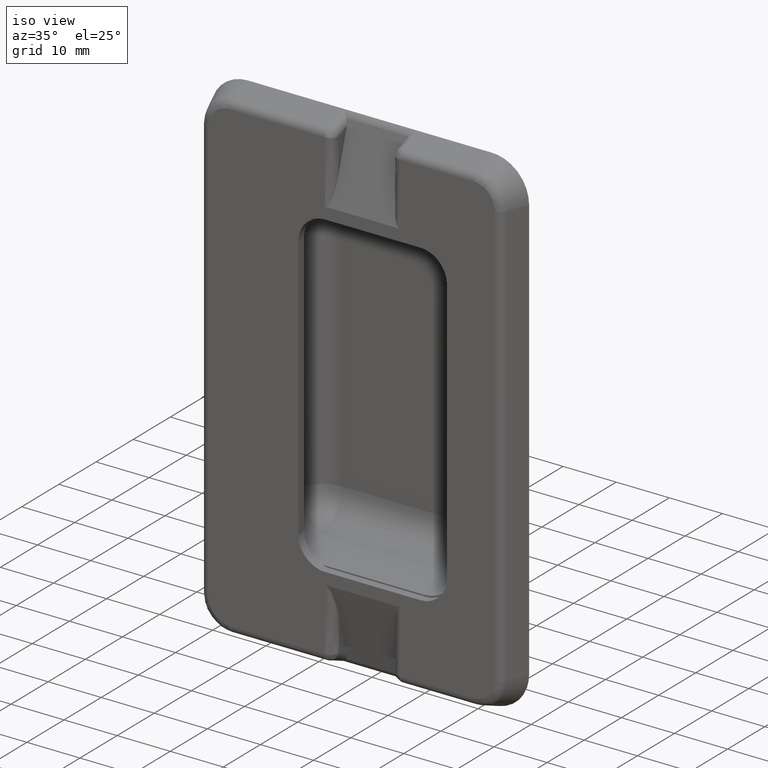
[diagram: clean part render]
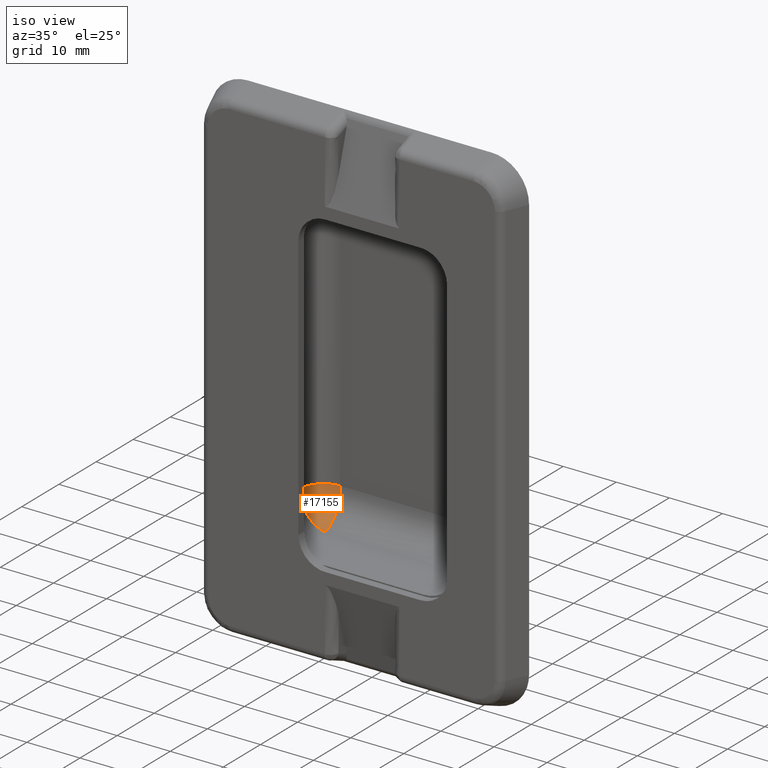
[diagram: same view with one face highlighted and labeled with its STEP entity id]
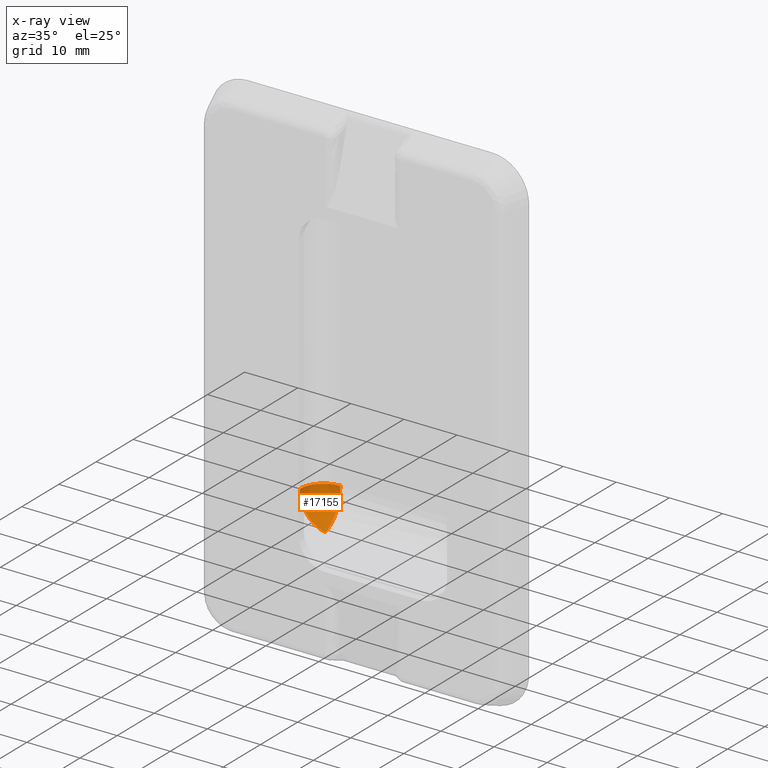
[diagram: x-ray of the same camera — body ghosted, the highlighted face saturated]
A machine part, iso view. The second image highlights one B-rep face of the part: STEP entity #17155.
The next image is the same camera in x-ray: the body ghosted, the highlighted face saturated — about 4% of this face is hidden behind the body in this view.
In plain terms, the highlighted face is a freeform B-spline surface patch.
Its self-contained STEP definition (entity closure, byte-faithful):
#17021=CARTESIAN_POINT('',(11.500000000000000,6.999999999999920,-24.250000000000000));
#17022=VERTEX_POINT('',#17021);
#17023=CARTESIAN_POINT('',(17.0,5.999999999999920,-29.750000000000000));
#17024=VERTEX_POINT('',#17023);
#17025=CARTESIAN_POINT('',(11.500000000000011,6.999999999999919,-24.250000000000000));
#17026=CARTESIAN_POINT('',(11.500000000000005,6.999999999999918,-29.750000000000000));
#17027=CARTESIAN_POINT('',(17.0,5.999999999999920,-29.750000000000000));
#17035=(BOUNDED_CURVE()B_SPLINE_CURVE(2,(#17025,#17026,#17027),.UNSPECIFIED.,.F.,.U.)CURVE()GEOMETRIC_REPRESENTATION_ITEM()QUASI_UNIFORM_CURVE()RATIONAL_B_SPLINE_CURVE((1.0,0.707106781186547,1.0))REPRESENTATION_ITEM(''));
#17036=EDGE_CURVE('',#17022,#17024,#17035,.T.);
#17068=CARTESIAN_POINT('',(17.001752577834349,5.999266428377748,-29.750238280549091));
#17069=CARTESIAN_POINT('',(16.279819153671369,6.130849822248829,-29.750393469589000));
#17070=CARTESIAN_POINT('',(15.560115113344860,6.261606969392829,-29.607170699032910));
#17071=CARTESIAN_POINT('',(14.562478895084190,6.442896734246604,-29.193431916663432));
#17072=CARTESIAN_POINT('',(14.243433222915630,6.500858903013822,-29.022982128203068));
#17073=CARTESIAN_POINT('',(13.644813140678270,6.609621300368510,-28.622921252275471));
#17074=CARTESIAN_POINT('',(13.365207259445819,6.660419579597163,-28.393438785556519));
#17075=CARTESIAN_POINT('',(12.856147251209840,6.752901561752097,-27.884314187152519));
#17076=CARTESIAN_POINT('',(12.626697560035600,6.794583344620217,-27.604698147132520));
#17077=CARTESIAN_POINT('',(12.226760053183741,6.867232057711505,-27.006073881526500));
#17078=CARTESIAN_POINT('',(12.056279191299110,6.898197029170958,-26.687082620124752));
#17079=CARTESIAN_POINT('',(11.780817451717200,6.948226963420177,-26.021975255001252));
#17080=CARTESIAN_POINT('',(11.675854426041850,6.967289948527316,-25.675869897661482));
#17081=CARTESIAN_POINT('',(11.535436760565560,6.992789820655151,-24.969842906344759));
#17082=CARTESIAN_POINT('',(11.499871061403340,6.999225404013973,-24.609933238623849));
#17083=CARTESIAN_POINT('',(11.499999997949800,6.999225326003385,-24.247898972264871));
#17084=CARTESIAN_POINT('',(17.001240544820011,5.998762595014594,-29.749889180412708));
#17085=CARTESIAN_POINT('',(16.574595714107691,6.425413607272526,-29.749388756241697));
#17086=CARTESIAN_POINT('',(16.149284055479033,6.850732439855696,-29.728436840710522));
#17087=CARTESIAN_POINT('',(15.457822345077824,7.542198638615837,-29.624623853077114));
#17088=CARTESIAN_POINT('',(15.218377828448578,7.781645179553515,-29.576932646922629));
#17089=CARTESIAN_POINT('',(14.714184872322658,8.285842999227295,-29.433661860044737));
#17090=CARTESIAN_POINT('',(14.449139106795842,8.550892525819890,-29.338101016133802));
#17091=CARTESIAN_POINT('',(13.893614696681720,9.106422522431124,-29.060613391516952));
#17092=CARTESIAN_POINT('',(13.602573559419657,9.397464862505988,-28.878296589803409));
#17093=CARTESIAN_POINT('',(13.015477818106689,9.984557541004259,-28.374129448253182));
#17094=CARTESIAN_POINT('',(12.719031086624081,10.280999971311960,-28.050678616971783));
#17095=CARTESIAN_POINT('',(12.179475631998420,10.820539231874614,-27.222944572539628));
#17096=CARTESIAN_POINT('',(11.937659711932440,11.062341012436224,-26.716424080387274));
#17097=CARTESIAN_POINT('',(11.596211723137676,11.403773544163041,-25.556577732582117));
#17098=CARTESIAN_POINT('',(11.499515891284139,11.500475218659242,-24.905560315800638));
#17099=CARTESIAN_POINT('',(11.499451286989981,11.500549704393263,-24.246174490884925));
#17100=CARTESIAN_POINT('',(17.000733083329791,5.998241563918159,-29.749985041015162));
#17101=CARTESIAN_POINT('',(16.869150521504778,6.720185172948601,-29.750599288832881));
#17102=CARTESIAN_POINT('',(16.738392808196249,7.439883365276139,-29.607099222500771));
#17103=CARTESIAN_POINT('',(16.557103136911021,8.437521246937266,-29.193444447583190));
#17104=CARTESIAN_POINT('',(16.499140914782750,8.756566536597575,-29.022978149383651));
#17105=CARTESIAN_POINT('',(16.390378482015802,9.355186743092460,-28.622922490883418));
#17106=CARTESIAN_POINT('',(16.339580176901709,9.634792553318999,-28.393438487289899));
#17107=CARTESIAN_POINT('',(16.247098148700388,10.143852713934219,-27.884314528021189));
#17108=CARTESIAN_POINT('',(16.205416342509778,10.373302269439550,-27.604698205773001));
#17109=CARTESIAN_POINT('',(16.132767585913779,10.773239862357080,-27.006074052782839));
#17110=CARTESIAN_POINT('',(16.101802593914901,10.943720722888621,-26.687082757066971));
#17111=CARTESIAN_POINT('',(16.051772625711440,11.219182507554240,-26.021975384731100));
#17112=CARTESIAN_POINT('',(16.032709626823770,11.324145538451170,-25.675870002264329));
#17113=CARTESIAN_POINT('',(16.007209734807589,11.464563218214550,-24.969842965659051));
#17114=CARTESIAN_POINT('',(16.000774145005209,11.500128933592400,-24.609933268198379));
#17115=CARTESIAN_POINT('',(16.000774222759521,11.500000002558661,-24.247898971725991));
#17123=(BOUNDED_SURFACE()B_SPLINE_SURFACE(3,2,((#17068,#17084,#17100),(#17069,#17085,#17101),(#17070,#17086,#17102),(#17071,#17087,#17103),(#17072,#17088,#17104),(#17073,#17089,#17105),(#17074,#17090,#17106),(#17075,#17091,#17107),(#17076,#17092,#17108),(#17077,#17093,#17109),(#17078,#17094,#17110),(#17079,#17095,#17111),(#17080,#17096,#17112),(#17081,#17097,#17113),(#17082,#17098,#17114),(#17083,#17099,#17115)),.UNSPECIFIED.,.F.,.F.,.U.)B_SPLINE_SURFACE_WITH_KNOTS((4,2,2,2,2,2,2,4),(3,3),(1.570414315724196,1.963495408493621,2.159844949342983,2.356194490192345,2.552544031041707,2.748893571891069,2.945243112740431,3.141974650769282),(-0.000121724055796,1.000121651929063),.UNSPECIFIED.)GEOMETRIC_REPRESENTATION_ITEM()RATIONAL_B_SPLINE_SURFACE(((1.0,1.0,1.0),(1.0,1.000158585517674,1.0),(1.0,0.986729182933028,1.0),(1.0,0.950674038355221,1.0),(1.0,0.936042179272602,1.0),(1.0,0.903165104413795,1.0),(1.0,0.884919139464395,1.0),(1.0,0.847131668104483,1.0),(1.0,0.827594258916169,1.0),(1.0,0.790218019327172,1.0),(1.0,0.772396809498834,1.0),(1.0,0.741833430198371,1.0),(1.0,0.729128884886277,1.0),(1.0,0.711746011657040,1.0),(1.0,0.707071721521830,1.0),(1.0,0.707106781186548,1.0)))REPRESENTATION_ITEM('')SURFACE());
#17124=CARTESIAN_POINT('',(16.0,11.500000000000000,-24.250000000000000));
#17125=VERTEX_POINT('',#17124);
#17126=CARTESIAN_POINT('',(16.0,11.499999999999920,-24.250000000000000));
#17127=CARTESIAN_POINT('',(11.500000000000002,11.499999999999924,-24.250000000000007));
#17128=CARTESIAN_POINT('',(11.500000000000000,6.999999999999920,-24.250000000000000));
#17136=(BOUNDED_CURVE()B_SPLINE_CURVE(2,(#17126,#17127,#17128),.UNSPECIFIED.,.F.,.U.)CURVE()GEOMETRIC_REPRESENTATION_ITEM()QUASI_UNIFORM_CURVE()RATIONAL_B_SPLINE_CURVE((1.0,0.707106781186547,1.0))REPRESENTATION_ITEM(''));
#17137=EDGE_CURVE('',#17125,#17022,#17136,.T.);
#17138=ORIENTED_EDGE('',*,*,#17137,.T.);
#17139=ORIENTED_EDGE('',*,*,#17036,.T.);
#17140=CARTESIAN_POINT('',(16.0,11.499999999999920,-24.250000000000000));
#17141=CARTESIAN_POINT('',(16.000000000000004,11.499999999999917,-29.750000000000000));
#17142=CARTESIAN_POINT('',(17.0,5.999999999999921,-29.750000000000000));
#17150=(BOUNDED_CURVE()B_SPLINE_CURVE(2,(#17140,#17141,#17142),.UNSPECIFIED.,.F.,.U.)CURVE()GEOMETRIC_REPRESENTATION_ITEM()QUASI_UNIFORM_CURVE()RATIONAL_B_SPLINE_CURVE((1.0,0.707106781186547,1.0))REPRESENTATION_ITEM(''));
#17151=EDGE_CURVE('',#17125,#17024,#17150,.T.);
#17152=ORIENTED_EDGE('',*,*,#17151,.F.);
#17153=EDGE_LOOP('',(#17138,#17139,#17152));
#17154=FACE_OUTER_BOUND('',#17153,.T.);
#17155=ADVANCED_FACE('',(#17154),#17123,.F.);